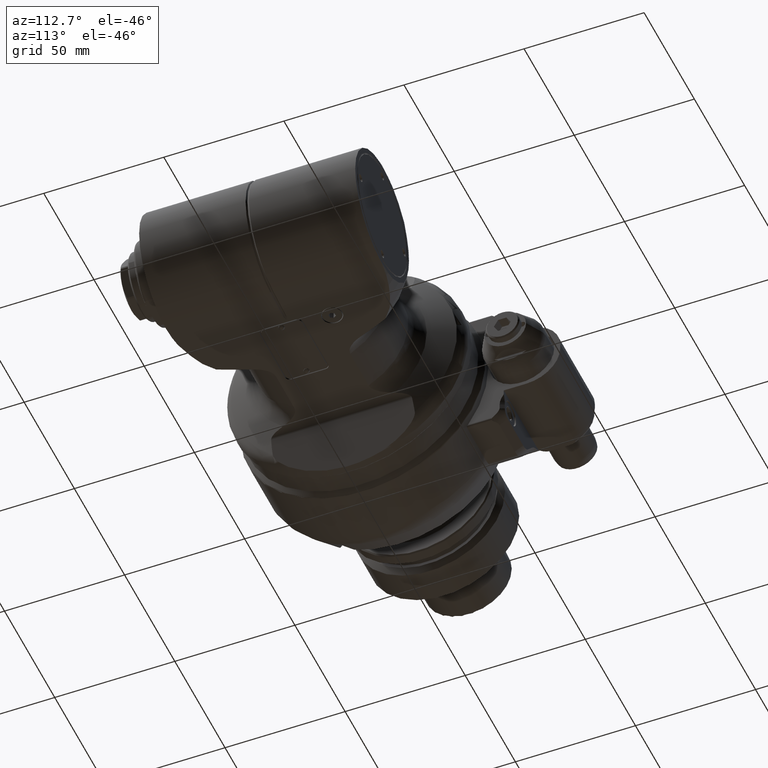
[diagram: clean part render]
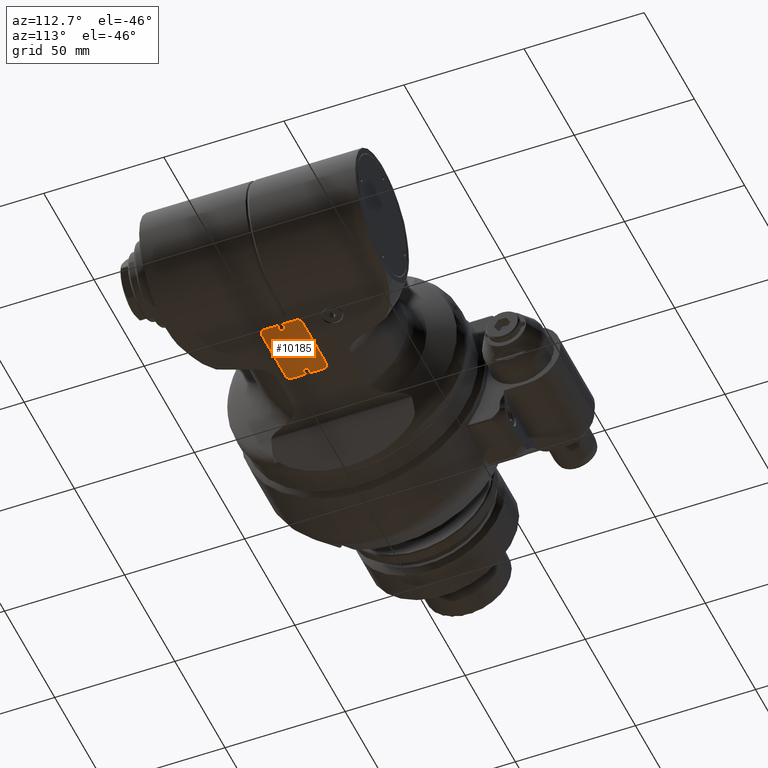
[diagram: same view with one face highlighted and labeled with its STEP entity id]
A machine part, auxiliary view. The second image highlights one B-rep face of the part: STEP entity #10185.
In plain terms, the highlighted planar face has unit normal (0, 0, 1).
Its self-contained STEP definition (entity closure, byte-faithful):
#760=LINE('',#20239,#1400);
#763=LINE('',#20248,#1403);
#764=LINE('',#20251,#1404);
#765=LINE('',#20255,#1405);
#1400=VECTOR('',#13564,13.);
#1403=VECTOR('',#13573,24.);
#1404=VECTOR('',#13576,24.);
#1405=VECTOR('',#13579,13.);
#1880=FACE_BOUND('',#3143,.T.);
#1881=FACE_BOUND('',#3144,.T.);
#2045=PLANE('',#11199);
#2503=FACE_OUTER_BOUND('',#3142,.T.);
#3142=EDGE_LOOP('',(#8453,#8454,#8455,#8456,#8457,#8458,#8459,#8460));
#3143=EDGE_LOOP('',(#8461,#8462));
#3144=EDGE_LOOP('',(#8463,#8464));
#3825=CIRCLE('',#11198,2.);
#3826=CIRCLE('',#11200,2.);
#3827=CIRCLE('',#11201,2.);
#3828=CIRCLE('',#11202,2.);
#3829=CIRCLE('',#11203,1.25);
#3830=CIRCLE('',#11204,1.25);
#3831=CIRCLE('',#11205,1.25);
#3832=CIRCLE('',#11206,1.25);
#4739=VERTEX_POINT('',#20236);
#4740=VERTEX_POINT('',#20238);
#4741=VERTEX_POINT('',#20242);
#4742=VERTEX_POINT('',#20246);
#4743=VERTEX_POINT('',#20247);
#4744=VERTEX_POINT('',#20250);
#4745=VERTEX_POINT('',#20252);
#4746=VERTEX_POINT('',#20254);
#4747=VERTEX_POINT('',#20257);
#4748=VERTEX_POINT('',#20258);
#4749=VERTEX_POINT('',#20261);
#4750=VERTEX_POINT('',#20262);
#6073=EDGE_CURVE('',#4739,#4740,#760,.T.);
#6076=EDGE_CURVE('',#4739,#4741,#3825,.T.);
#6077=EDGE_CURVE('',#4742,#4743,#763,.T.);
#6078=EDGE_CURVE('',#4742,#4740,#3826,.T.);
#6079=EDGE_CURVE('',#4744,#4741,#764,.T.);
#6080=EDGE_CURVE('',#4744,#4745,#3827,.T.);
#6081=EDGE_CURVE('',#4746,#4745,#765,.T.);
#6082=EDGE_CURVE('',#4746,#4743,#3828,.T.);
#6083=EDGE_CURVE('',#4747,#4748,#3829,.T.);
#6084=EDGE_CURVE('',#4748,#4747,#3830,.T.);
#6085=EDGE_CURVE('',#4749,#4750,#3831,.T.);
#6086=EDGE_CURVE('',#4750,#4749,#3832,.T.);
#8453=ORIENTED_EDGE('',*,*,#6077,.F.);
#8454=ORIENTED_EDGE('',*,*,#6078,.T.);
#8455=ORIENTED_EDGE('',*,*,#6073,.F.);
#8456=ORIENTED_EDGE('',*,*,#6076,.T.);
#8457=ORIENTED_EDGE('',*,*,#6079,.F.);
#8458=ORIENTED_EDGE('',*,*,#6080,.T.);
#8459=ORIENTED_EDGE('',*,*,#6081,.F.);
#8460=ORIENTED_EDGE('',*,*,#6082,.T.);
#8461=ORIENTED_EDGE('',*,*,#6083,.T.);
#8462=ORIENTED_EDGE('',*,*,#6084,.T.);
#8463=ORIENTED_EDGE('',*,*,#6085,.T.);
#8464=ORIENTED_EDGE('',*,*,#6086,.T.);
#10185=ADVANCED_FACE('',(#2503,#1880,#1881),#2045,.F.);
#11198=AXIS2_PLACEMENT_3D('',#20244,#13569,#13570);
#11199=AXIS2_PLACEMENT_3D('',#20245,#13571,#13572);
#11200=AXIS2_PLACEMENT_3D('',#20249,#13574,#13575);
#11201=AXIS2_PLACEMENT_3D('',#20253,#13577,#13578);
#11202=AXIS2_PLACEMENT_3D('',#20256,#13580,#13581);
#11203=AXIS2_PLACEMENT_3D('',#20259,#13582,#13583);
#11204=AXIS2_PLACEMENT_3D('',#20260,#13584,#13585);
#11205=AXIS2_PLACEMENT_3D('',#20263,#13586,#13587);
#11206=AXIS2_PLACEMENT_3D('',#20264,#13588,#13589);
#13564=DIRECTION('',(0.,-1.,0.));
#13569=DIRECTION('center_axis',(0.,0.,-1.));
#13570=DIRECTION('ref_axis',(-1.,0.,0.));
#13571=DIRECTION('center_axis',(0.,0.,1.));
#13572=DIRECTION('ref_axis',(0.,-1.,0.));
#13573=DIRECTION('',(1.,0.,0.));
#13574=DIRECTION('center_axis',(0.,0.,-1.));
#13575=DIRECTION('ref_axis',(-1.06581410364E-13,-1.,0.));
#13576=DIRECTION('',(-1.,0.,0.));
#13577=DIRECTION('center_axis',(0.,0.,-1.));
#13578=DIRECTION('ref_axis',(0.,1.,0.));
#13579=DIRECTION('',(0.,1.,0.));
#13580=DIRECTION('center_axis',(0.,0.,-1.));
#13581=DIRECTION('ref_axis',(1.,0.,0.));
#13582=DIRECTION('center_axis',(0.,0.,1.));
#13583=DIRECTION('ref_axis',(0.,-1.,0.));
#13584=DIRECTION('center_axis',(0.,0.,1.));
#13585=DIRECTION('ref_axis',(0.,-1.,0.));
#13586=DIRECTION('center_axis',(0.,0.,1.));
#13587=DIRECTION('ref_axis',(7.958078640513E-14,-1.,0.));
#13588=DIRECTION('center_axis',(0.,0.,1.));
#13589=DIRECTION('ref_axis',(7.958078640513E-14,-1.,0.));
#20236=CARTESIAN_POINT('',(48.,3.000000156135,-27.99999997169));
#20238=CARTESIAN_POINT('',(48.,-9.999999843865,-27.99999997169));
#20239=CARTESIAN_POINT('',(48.,3.000000156135,-27.99999997169));
#20242=CARTESIAN_POINT('',(50.,5.000000156135,-27.99999997169));
#20244=CARTESIAN_POINT('Origin',(50.,3.000000156135,-27.99999997169));
#20245=CARTESIAN_POINT('Origin',(68.44415190767,2.163013760147,-27.99999997169));
#20246=CARTESIAN_POINT('',(50.,-11.99999984387,-27.99999997169));
#20247=CARTESIAN_POINT('',(74.,-11.99999984387,-27.99999997169));
#20248=CARTESIAN_POINT('',(50.,-11.99999984387,-27.99999997169));
#20249=CARTESIAN_POINT('Origin',(50.,-9.999999843865,-27.99999997169));
#20250=CARTESIAN_POINT('',(74.,5.000000156135,-27.99999997169));
#20251=CARTESIAN_POINT('',(74.,5.000000156135,-27.99999997169));
#20252=CARTESIAN_POINT('',(76.,3.000000156135,-27.99999997169));
#20253=CARTESIAN_POINT('Origin',(74.,3.000000156135,-27.99999997169));
#20254=CARTESIAN_POINT('',(76.,-9.999999843865,-27.99999997169));
#20255=CARTESIAN_POINT('',(76.,-9.999999843865,-27.99999997169));
#20256=CARTESIAN_POINT('Origin',(74.,-9.999999843865,-27.99999997169));
#20257=CARTESIAN_POINT('',(74.5,-2.249999843865,-27.99999997169));
#20258=CARTESIAN_POINT('',(74.5,-4.749999843865,-27.99999997169));
#20259=CARTESIAN_POINT('Origin',(74.5,-3.499999843865,-27.99999997169));
#20260=CARTESIAN_POINT('Origin',(74.5,-3.499999843865,-27.99999997169));
#20261=CARTESIAN_POINT('',(49.5,-2.249999843865,-27.99999997169));
#20262=CARTESIAN_POINT('',(49.5,-4.749999843865,-27.99999997169));
#20263=CARTESIAN_POINT('Origin',(49.5,-3.499999843865,-27.99999997169));
#20264=CARTESIAN_POINT('Origin',(49.5,-3.499999843865,-27.99999997169));